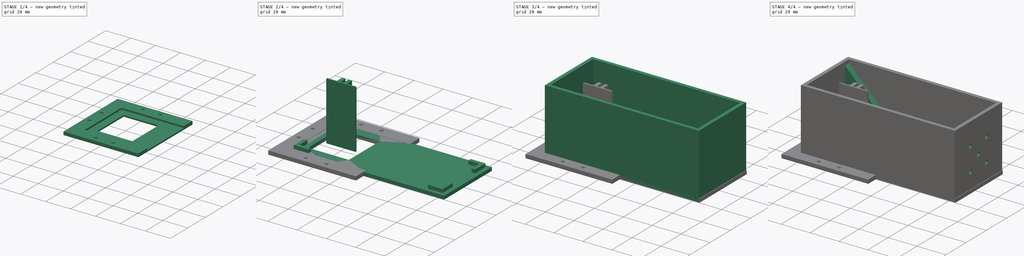
[diagram: build sequence overview — one tinted view per stage of 4, left to right]
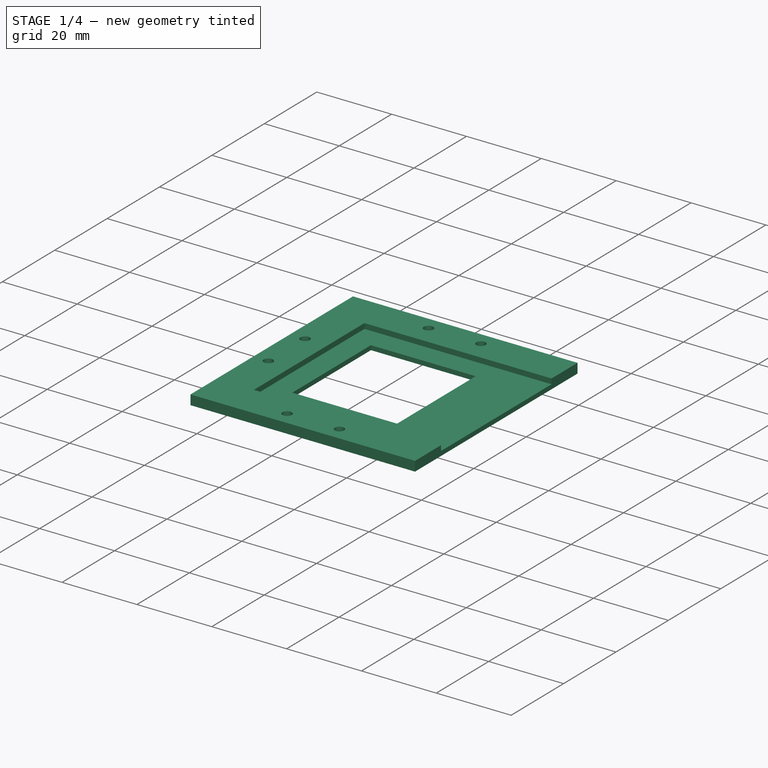
[diagram: stage 1 of 4 — iso view after this stage's code; geometry added in this stage tinted green]
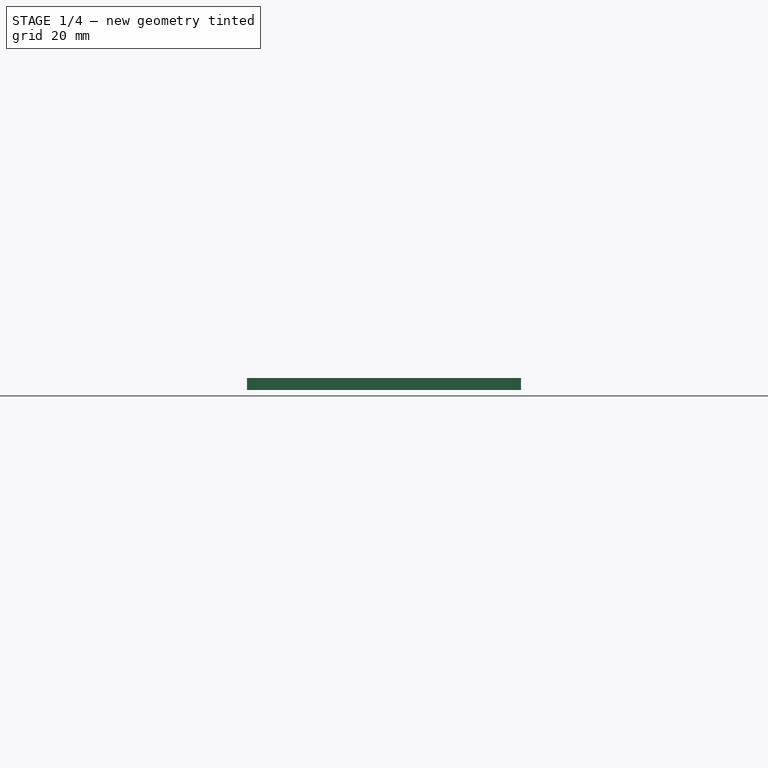
[diagram: stage 1 of 4 — front view after this stage's code; geometry added in this stage tinted green]
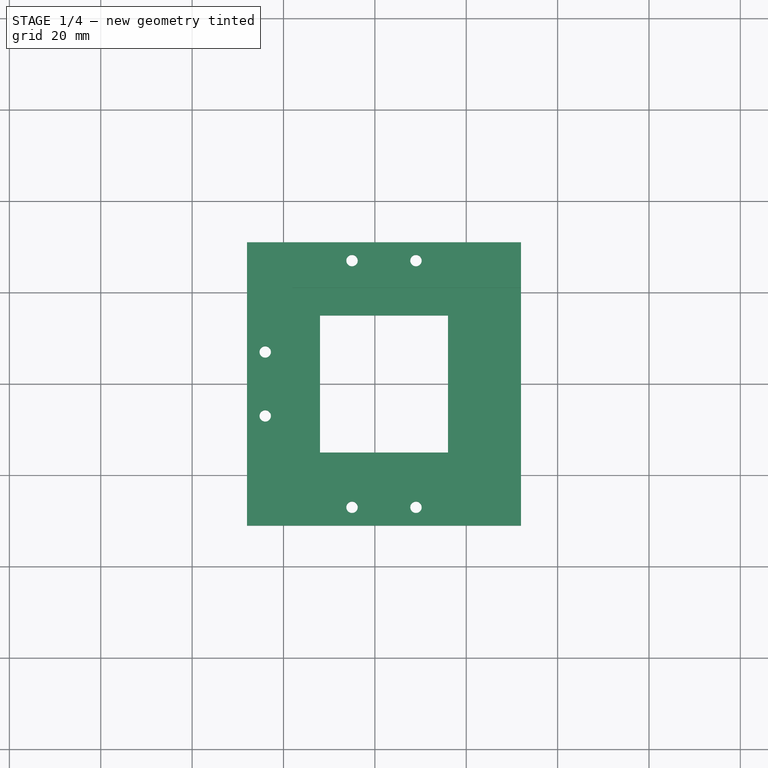
[diagram: stage 1 of 4 — top view after this stage's code; geometry added in this stage tinted green]
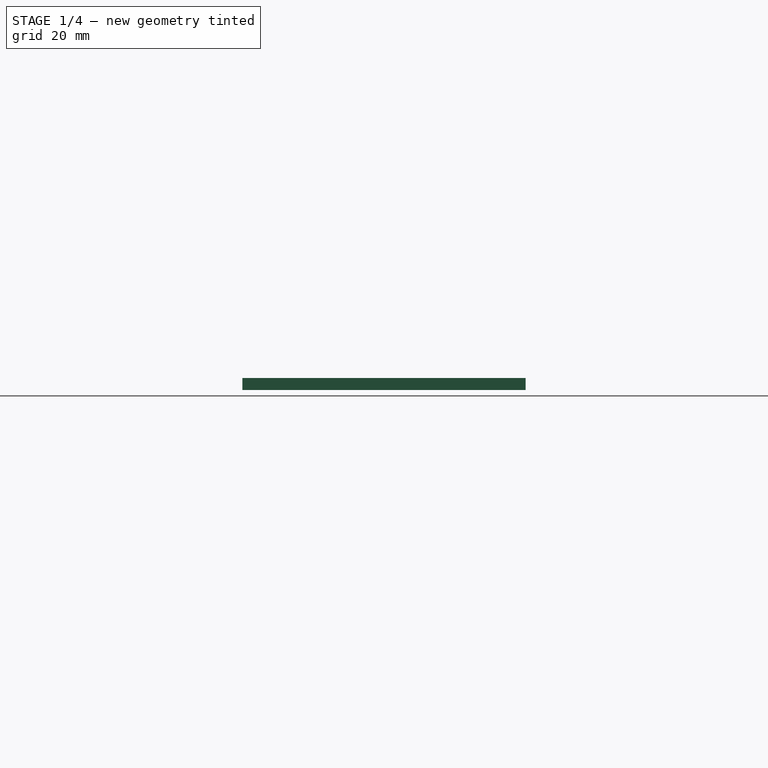
[diagram: stage 1 of 4 — right view after this stage's code; geometry added in this stage tinted green]
FCSTD DOCUMENT  (FreeCAD 1.0R39109 (Git))
Label: slide-scanner
License: All rights reserved
LicenseURL: https://en.wikipedia.org/wiki/All_rights_reserved
objects: Sketcher::SketchObject×10, PartDesign::Pad×8, PartDesign::Body×4, Spreadsheet::Sheet×2, PartDesign::Pocket×2, PartDesign::Mirrored×1
note: 56 computed .brp shape members not serialized (recipe doc carries the construction recipe); baked Part::Feature solids carry a one-line shape summary decoded from their .brp

FEATURE [PartDesign::Body] Body002  label="lid"
  AllowCompound = false
  Group = -> [Sketch005,Sketch006,Pad005,Pad006]
  Origin = -> Origin002
  Tip = -> Pad006
FEATURE [Sketcher::SketchObject] Sketch007  label="main001"
  ArcFitTolerance = 1e-06
  AttachmentSupport = -> [XY_Plane003]
  FullyConstrained = true
  MakeInternals = false
  MapMode = 5
  sketch-geometry (20):
    g0: LineSegment StartX=-12 StartY=15 StartZ=0 EndX=-12 EndY=-15 EndZ=0
    g1: LineSegment StartX=-12 StartY=-15 StartZ=0 EndX=16 EndY=-15 EndZ=0
    g2: LineSegment StartX=16 StartY=-15 StartZ=0 EndX=16 EndY=15 EndZ=0
    g3: LineSegment StartX=16 StartY=15 StartZ=0 EndX=-12 EndY=15 EndZ=0
    g4: Circle CenterX=-5 CenterY=27 CenterZ=0 NormalX=0 NormalY=0 NormalZ=1 AngleXU=0 Radius=1.25
    g5: Circle CenterX=9 CenterY=27 CenterZ=0 NormalX=0 NormalY=0 NormalZ=1 AngleXU=0 Radius=1.25
    g6: Circle CenterX=-5 CenterY=-27 CenterZ=0 NormalX=0 NormalY=0 NormalZ=1 AngleXU=0 Radius=1.25
    g7: Circle CenterX=9 CenterY=-27 CenterZ=0 NormalX=0 NormalY=0 NormalZ=1 AngleXU=0 Radius=1.25
    g8: GeomPoint [constr] X=2 Y=15 Z=0
    g9: GeomPoint [constr] X=2 Y=-15 Z=0
    g10: GeomPoint [constr] X=9 Y=-15 Z=0
    g11: GeomPoint [constr] X=-5 Y=-15 Z=0
    g12: GeomPoint [constr] X=-5 Y=15 Z=0
    g13: GeomPoint [constr] X=9 Y=15 Z=0
    g14: Circle CenterX=-24 CenterY=7 CenterZ=0 NormalX=0 NormalY=0 NormalZ=1 AngleXU=0 Radius=1.25
    g15: Circle CenterX=-24 CenterY=-7 CenterZ=0 NormalX=0 NormalY=0 NormalZ=1 AngleXU=0 Radius=1.25
    g16: LineSegment StartX=-28 StartY=31 StartZ=0 EndX=32 EndY=31 EndZ=0
    g17: LineSegment StartX=32 StartY=-31 StartZ=0 EndX=-28 EndY=-31 EndZ=0
    g18: LineSegment StartX=-28 StartY=31 StartZ=0 EndX=-28 EndY=-31 EndZ=0
    g19: LineSegment StartX=32 StartY=31 StartZ=0 EndX=32 EndY=-31 EndZ=0
  constraints (46):
    c: Coincident(g0,g1)
    c: Coincident(g1,g2)
    c: Coincident(g2,g3)
    c: Coincident(g3,g0)
    c: Vertical(g2)
    c: Horizontal(g1)
    c: Horizontal(g3)
    c: DistanceX(g3,g3) = 28
    c: DistanceY(g2,g2) = 30
    c: DistanceX(g0,g-1) = 12
    c: Equal(g7,g6)
    c: Equal(g6,g4)
    c: Equal(g4,g5)
    c: Diameter(g4) = 2.5
    c: Symmetric(g0,g2,g8)
    c: Symmetric(g1,g0,g9)
    c: Symmetric(g8,g2,g13)
    c: Symmetric(g0,g8,g12)
    c: Symmetric(g0,g9,g11)
    c: Symmetric(g1,g9,g10)
    c: Vertical(g4,g12)
    c: Vertical(g5,g13)
    c: Vertical(g7,g10)
    c: Vertical(g6,g11)
    c: DistanceY(g6,g11) = 12
    c: DistanceY(g7,g10) = 12
    c: DistanceY(g12,g4) = 12
    c: DistanceY(g13,g5) = 12
    c: Equal(g14,g4)
    c: Equal(g15,g4)
    c: Horizontal(g16)
    c: Horizontal(g17)
    c: Coincident(g18,g16)
    c: Coincident(g18,g17)
    c: DistanceY(g17,g6) = 4
    c: DistanceY(g4,g16) = 4
    c: DistanceX(g16,g14) = 4
    c: DistanceX(g15,g0) = 12
    c: Symmetric(g15,g14,g-1)
    c: Vertical(g18)
    c: Symmetric(g0,g0,g-1)
    c: DistanceY(g15,g14) = 14
    c: Coincident(g19,g16)
    c: Coincident(g19,g17)
    c: Vertical(g19)
    c: DistanceX(g1,g17) = 16
FEATURE [PartDesign::Pad] Pad007
  Direction = (0,0,1)
  Length = 1.2
  Length2 = 10
  Profile = -> Sketch007
  ReferenceAxis = -> Sketch007 [N_Axis]
  Refine = true
  Suppressed = false
  Type = 0
FEATURE [Spreadsheet::Sheet] Spreadsheet001
  cells = A1='slide w; B1(slide_w)=101; A2='slide h; B2(slide_h)=41; A3='wall w; B3(wall_w)=2.4; A4='tolerance; B4(tol)=0.4
FEATURE [Sketcher::SketchObject] Sketch008
  ArcFitTolerance = 1e-06
  AttachmentSupport = -> [XY_Plane003]
  ExternalGeometry = -> [Pad007]
  FullyConstrained = true
  MakeInternals = false
  MapMode = 5
  sketch-geometry (8):
    g0: LineSegment StartX=-28 StartY=31 StartZ=0 EndX=-28 EndY=-31 EndZ=0
    g1: LineSegment StartX=-28 StartY=-31 StartZ=0 EndX=32 EndY=-31 EndZ=0
    g2: LineSegment StartX=32 StartY=31 StartZ=0 EndX=-28 EndY=31 EndZ=0
    g3: LineSegment StartX=-18 StartY=21.1 StartZ=0 EndX=-18 EndY=-21.1 EndZ=0
    g4: LineSegment StartX=-18 StartY=-21.1 StartZ=0 EndX=32 EndY=-21.1 EndZ=0
    g5: LineSegment StartX=32 StartY=21.1 StartZ=0 EndX=-18 EndY=21.1 EndZ=0
    g6: LineSegment StartX=32 StartY=21.1 StartZ=0 EndX=32 EndY=31 EndZ=0
    g7: LineSegment StartX=32 StartY=-21.1 StartZ=0 EndX=32 EndY=-31 EndZ=0
  constraints (21):
    c: Coincident(g0,g1)
    c: Coincident(g2,g0)
    c: Vertical(g0)
    c: Horizontal(g1)
    c: Horizontal(g2)
    c: Coincident(g0,g-4)
    c: Coincident(g1,g-5)
    c: Coincident(g3,g4)
    c: Coincident(g5,g3)
    c: Horizontal(g4)
    c: Horizontal(g5)
    c: DistanceY(g3,g3) = 42.2
    c: Symmetric(g3,g3,g-1)
    c: DistanceX(g0,g3) = 10
    c: Vertical(g5,g2)
    c: Coincident(g6,g5)
    c: Coincident(g6,g2)
    c: Coincident(g7,g4)
    c: Coincident(g7,g1)
    c: Vertical(g7)
    c: Vertical(g5,g4)
FEATURE [PartDesign::Pad] Pad008
  BaseFeature = -> Pad007
  Direction = (0,0,1)
  Length = 2.6
  Length2 = 10
  Profile = -> Sketch008
  ReferenceAxis = -> Sketch008 [N_Axis]
  Refine = true
  Suppressed = false
  Type = 0
FEATURE [Sketcher::SketchObject] Sketch009  label="main002"
  ArcFitTolerance = 1e-06
  AttachmentSupport = -> [XY_Plane003]
  FullyConstrained = false
  MakeInternals = false
  MapMode = 5
  sketch-geometry (6):
    g0: Circle CenterX=-5 CenterY=27 CenterZ=0 NormalX=0 NormalY=0 NormalZ=1 AngleXU=0 Radius=1.25
    g1: Circle CenterX=9 CenterY=27 CenterZ=0 NormalX=0 NormalY=0 NormalZ=1 AngleXU=0 Radius=1.25
    g2: Circle CenterX=-5 CenterY=-27 CenterZ=0 NormalX=0 NormalY=0 NormalZ=1 AngleXU=0 Radius=1.25
    g3: Circle CenterX=9 CenterY=-27 CenterZ=0 NormalX=0 NormalY=0 NormalZ=1 AngleXU=0 Radius=1.25
    g4: Circle CenterX=-24 CenterY=7 CenterZ=0 NormalX=0 NormalY=0 NormalZ=1 AngleXU=0 Radius=1.25
    g5: Circle CenterX=-24 CenterY=-7 CenterZ=0 NormalX=0 NormalY=0 NormalZ=1 AngleXU=0 Radius=1.25
  constraints (8):
    c: Equal(g3,g2)
    c: Equal(g2,g0)
    c: Equal(g0,g1)
    c: Diameter(g0) = 2.5
    c: Equal(g4,g0)
    c: Equal(g5,g0)
    c: Symmetric(g5,g4,g-1)
    c: DistanceY(g5,g4) = 14
FEATURE [PartDesign::Pocket] Pocket001
  BaseFeature = -> Pad008
  Direction = (0,0,-1)
  Length = 5
  Length2 = 5
  Midplane = true
  Profile = -> Sketch009
  ReferenceAxis = -> Sketch009 [N_Axis]
  Refine = true
  Suppressed = false
  Type = 1
FEATURE [PartDesign::Body] Body003  label="lid-top"
  AllowCompound = false
  Group = -> [Sketch007,Pad007,Sketch008,Pad008,Sketch009,Pocket001]
  Origin = -> Origin003
  Tip = -> Pocket001
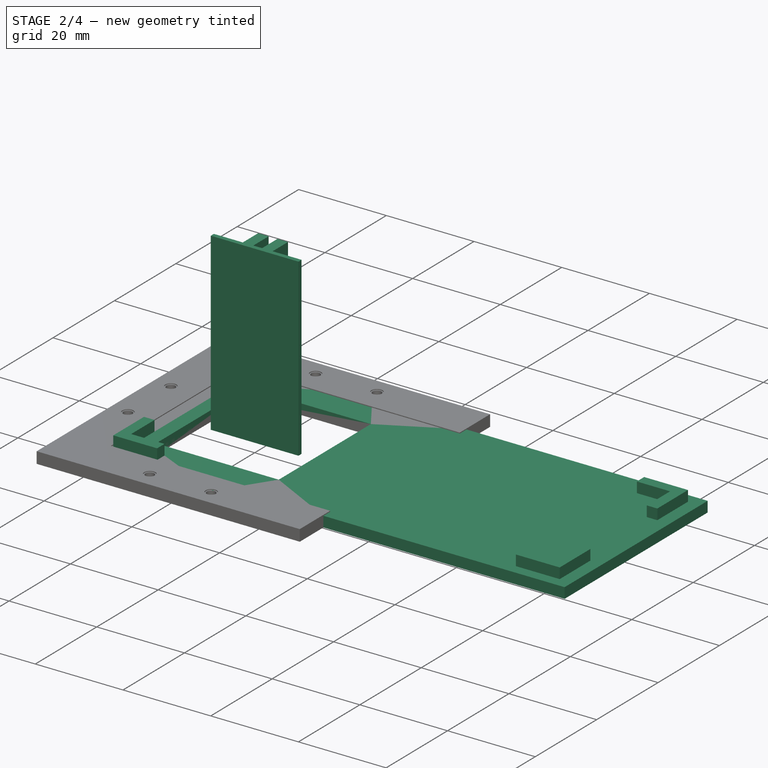
[diagram: stage 2 of 4 — iso view after this stage's code; geometry added in this stage tinted green]
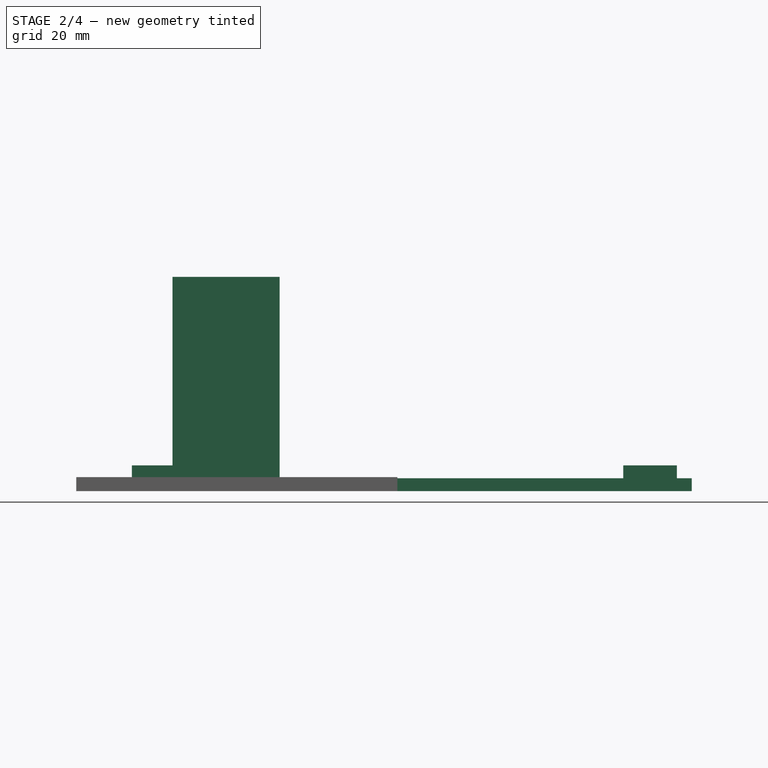
[diagram: stage 2 of 4 — front view after this stage's code; geometry added in this stage tinted green]
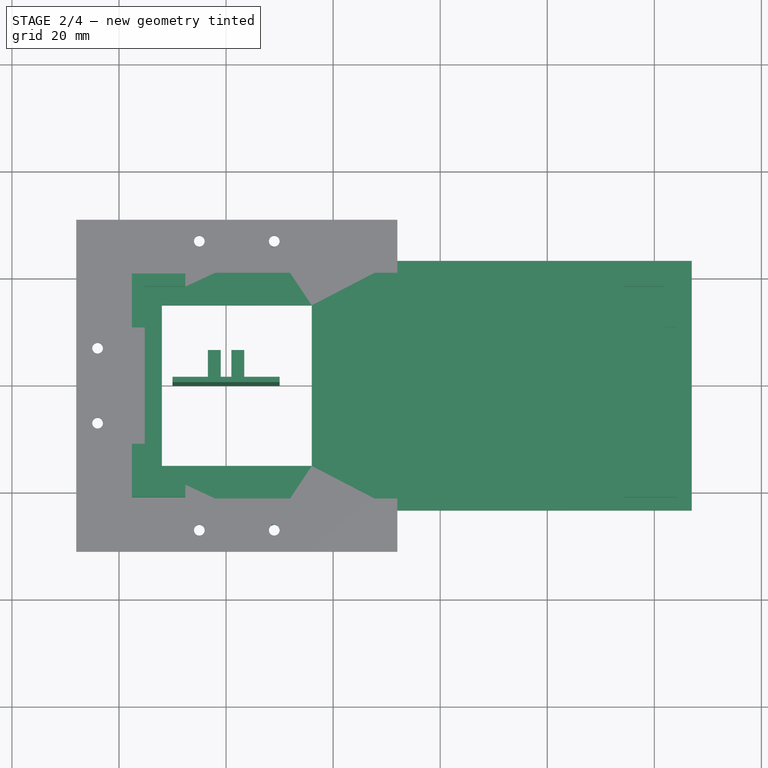
[diagram: stage 2 of 4 — top view after this stage's code; geometry added in this stage tinted green]
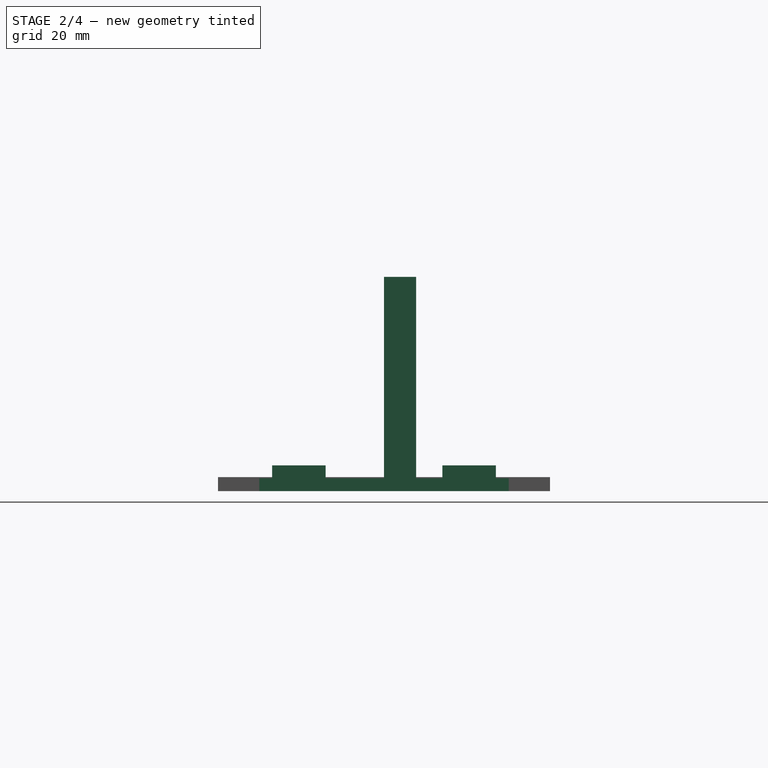
[diagram: stage 2 of 4 — right view after this stage's code; geometry added in this stage tinted green]
FEATURE [PartDesign::Body] Body  label="box"
  AllowCompound = false
  Group = -> [Sketch,Pad,Sketch001,Pad001,Sketch002,Pad002,Mirrored,Sketch003,Pocket]
  Origin = -> Origin
  Tip = -> Pocket
FEATURE [Sketcher::SketchObject] Sketch004
  ArcFitTolerance = 1e-06
  AttachmentSupport = -> [XY_Plane001]
  FullyConstrained = true
  MakeInternals = false
  MapMode = 5
  sketch-geometry (12):
    g0: LineSegment StartX=-10 StartY=0 StartZ=0 EndX=10 EndY=0 EndZ=0
    g1: LineSegment StartX=10 StartY=0 StartZ=0 EndX=10 EndY=1 EndZ=0
    g2: LineSegment StartX=10 StartY=1 StartZ=0 EndX=3.4 EndY=1 EndZ=0
    g3: LineSegment StartX=3.4 StartY=1 StartZ=0 EndX=3.4 EndY=6 EndZ=0
    g4: LineSegment StartX=3.4 StartY=6 StartZ=0 EndX=1 EndY=6 EndZ=0
    g5: LineSegment StartX=1 StartY=6 StartZ=0 EndX=1 EndY=1 EndZ=0
    g6: LineSegment StartX=1 StartY=1 StartZ=0 EndX=-1 EndY=1 EndZ=0
    g7: LineSegment StartX=-1 StartY=1 StartZ=0 EndX=-1 EndY=6 EndZ=0
    g8: LineSegment StartX=-1 StartY=6 StartZ=0 EndX=-3.4 EndY=6 EndZ=0
    g9: LineSegment StartX=-3.4 StartY=6 StartZ=0 EndX=-3.4 EndY=1 EndZ=0
    g10: LineSegment StartX=-3.4 StartY=1 StartZ=0 EndX=-10 EndY=1 EndZ=0
    g11: LineSegment StartX=-10 StartY=1 StartZ=0 EndX=-10 EndY=0 EndZ=0
  constraints (33):
    c: PointOnObject(g0,g-1)
    c: Coincident(g0,g1)
    c: Vertical(g1)
    c: Coincident(g1,g2)
    c: Horizontal(g2)
    c: Coincident(g2,g3)
    c: Vertical(g3)
    c: Coincident(g3,g4)
    c: Coincident(g4,g5)
    c: Vertical(g5)
    c: Coincident(g5,g6)
    c: Coincident(g6,g7)
    c: Vertical(g7)
    c: Coincident(g7,g8)
    c: Coincident(g8,g9)
    c: Vertical(g9)
    c: Coincident(g9,g10)
    c: Horizontal(g10)
    c: Coincident(g10,g11)
    c: Coincident(g11,g0)
    c: Vertical(g11)
    c: Symmetric(g7,g4,g-2)
    c: Horizontal(g6)
    c: Horizontal(g8)
    c: Symmetric(g0,g0,g-1)
    c: DistanceY(g11,g11) = 1
    c: DistanceX(g0,g0) = 20
    c: Horizontal(g6,g9)
    c: Horizontal(g2,g5)
    c: Symmetric(g3,g8,g-2)
    c: DistanceY(g9,g9) = 5
    c: DistanceX(g8,g8) = 2.4
    c: DistanceX(g6,g6) = 2
FEATURE [PartDesign::Pad] Pad003
  Direction = (0,0,1)
  Length = 40
  Length2 = 10
  Profile = -> Sketch004
  ReferenceAxis = -> Sketch004 [N_Axis]
  Refine = true
  Suppressed = false
  Type = 0
FEATURE [PartDesign::Body] Body001  label="paper holder"
  AllowCompound = false
  Group = -> [Sketch004,Pad003]
  Origin = -> Origin001
  Tip = -> Pad003
FEATURE [Sketcher::SketchObject] Sketch005  label="main"
  ArcFitTolerance = 1e-06
  AttachmentSupport = -> [XY_Plane002]
  FullyConstrained = true
  MakeInternals = false
  MapMode = 5
  expr: Constraints[31] = Spreadsheet.slide_h + 2 * (Spreadsheet.wall_w + Spreadsheet.tol)
  sketch-geometry (24):
    g0: LineSegment StartX=87 StartY=-23.3 StartZ=0 EndX=87 EndY=23.3 EndZ=0
    g1: LineSegment StartX=-12 StartY=15 StartZ=0 EndX=-12 EndY=-15 EndZ=0
    g2: LineSegment StartX=-12 StartY=-15 StartZ=0 EndX=16 EndY=-15 EndZ=0
    g3: LineSegment StartX=16 StartY=-15 StartZ=0 EndX=16 EndY=15 EndZ=0
    g4: LineSegment StartX=16 StartY=15 StartZ=0 EndX=-12 EndY=15 EndZ=0
    g5: Circle CenterX=-5 CenterY=27 CenterZ=0 NormalX=0 NormalY=0 NormalZ=1 AngleXU=0 Radius=1
    g6: Circle CenterX=9 CenterY=27 CenterZ=0 NormalX=0 NormalY=0 NormalZ=1 AngleXU=0 Radius=1
    g7: Circle CenterX=-5 CenterY=-27 CenterZ=0 NormalX=0 NormalY=0 NormalZ=1 AngleXU=0 Radius=1
    g8: Circle CenterX=9 CenterY=-27 CenterZ=0 NormalX=0 NormalY=0 NormalZ=1 AngleXU=0 Radius=1
    g9: GeomPoint [constr] X=2 Y=15 Z=0
    g10: GeomPoint [constr] X=2 Y=-15 Z=0
    g11: GeomPoint [constr] X=9 Y=-15 Z=0
    g12: GeomPoint [constr] X=-5 Y=-15 Z=0
    g13: GeomPoint [constr] X=-5 Y=15 Z=0
    g14: GeomPoint [constr] X=9 Y=15 Z=0
    g15: Circle CenterX=-24 CenterY=7 CenterZ=0 NormalX=0 NormalY=0 NormalZ=1 AngleXU=0 Radius=1
    g16: Circle CenterX=-24 CenterY=-7 CenterZ=0 NormalX=0 NormalY=0 NormalZ=1 AngleXU=0 Radius=1
    g17: LineSegment StartX=-28 StartY=31 StartZ=0 EndX=32 EndY=31 EndZ=0
    g18: LineSegment StartX=32 StartY=31 StartZ=0 EndX=32 EndY=23.3 EndZ=0
    g19: LineSegment StartX=32 StartY=23.3 StartZ=0 EndX=87 EndY=23.3 EndZ=0
    g20: LineSegment StartX=87 StartY=-23.3 StartZ=0 EndX=32 EndY=-23.3 EndZ=0
    g21: LineSegment StartX=32 StartY=-23.3 StartZ=0 EndX=32 EndY=-31 EndZ=0
    g22: LineSegment StartX=32 StartY=-31 StartZ=0 EndX=-28 EndY=-31 EndZ=0
    g23: LineSegment StartX=-28 StartY=31 StartZ=0 EndX=-28 EndY=-31 EndZ=0
  constraints (57):
    c: Vertical(g0)
    c: Coincident(g1,g2)
    c: Coincident(g2,g3)
    c: Coincident(g3,g4)
    c: Coincident(g4,g1)
    c: Vertical(g3)
    c: Horizontal(g2)
    c: Horizontal(g4)
    c: DistanceX(g4,g4) = 28
    c: DistanceY(g3,g3) = 30
    c: DistanceX(g1,g-1) = 12
    c: Equal(g8,g7)
    c: Equal(g7,g5)
    c: Equal(g5,g6)
    c: Diameter(g5) = 2
    c: Symmetric(g1,g3,g9)
    c: Symmetric(g2,g1,g10)
    c: Symmetric(g9,g3,g14)
    c: Symmetric(g1,g9,g13)
    c: Symmetric(g1,g10,g12)
    c: Symmetric(g2,g10,g11)
    c: Vertical(g5,g13)
    c: Vertical(g6,g14)
    c: Vertical(g8,g11)
    c: Vertical(g7,g12)
    c: DistanceY(g7,g12) = 12
    c: DistanceY(g8,g11) = 12
    c: DistanceY(g13,g5) = 12
    c: DistanceY(g14,g6) = 12
    c: Equal(g15,g5)
    c: Equal(g16,g5)
    c: DistanceY(g0,g0) = 46.6
    c: Horizontal(g17)
    c: Coincident(g17,g18)
    c: Coincident(g18,g19)
    c: Coincident(g19,g0)
    c: Horizontal(g19)
    c: Coincident(g0,g20)
    c: Horizontal(g20)
    c: Coincident(g20,g21)
    c: Coincident(g21,g22)
    c: Horizontal(g22)
    c: Coincident(g23,g17)
    c: Coincident(g23,g22)
    c: Vertical(g18)
    c: Vertical(g21)
    c: DistanceX(g2,g20) = 16
    c: Symmetric(g18,g20,g-1)
    c: DistanceX(g3,g0) = 71
    c: DistanceY(g22,g7) = 4
    c: DistanceY(g5,g17) = 4
    c: DistanceX(g17,g15) = 4
    c: DistanceX(g16,g1) = 12
    c: Symmetric(g16,g15,g-1)
    c: Vertical(g23)
    c: Symmetric(g1,g1,g-1)
    c: DistanceY(g16,g15) = 14
FEATURE [Sketcher::SketchObject] Sketch006  label="corners"
  ArcFitTolerance = 1e-06
  AttachmentSupport = -> [XY_Plane002]
  FullyConstrained = true
  MakeInternals = false
  MapMode = 5
  expr: Constraints[36] = Spreadsheet.wall_w
  expr: Constraints[37] = Spreadsheet.wall_w
  expr: Constraints[38] = Spreadsheet.wall_w
  expr: Constraints[39] = Spreadsheet.wall_w
  expr: Constraints[40] = Spreadsheet.wall_w
  expr: Constraints[41] = Spreadsheet.wall_w
  expr: Constraints[42] = Spreadsheet.wall_w
  expr: Constraints[43] = Spreadsheet.wall_w
  expr: Constraints[71] = Spreadsheet.wall_w
  sketch-geometry (24):
    g0: LineSegment StartX=-7.6 StartY=20.9 StartZ=0 EndX=-17.6 EndY=20.9 EndZ=0
    g1: LineSegment StartX=-17.6 StartY=20.9 StartZ=0 EndX=-17.6 EndY=10.9 EndZ=0
    g2: LineSegment StartX=-17.6 StartY=10.9 StartZ=0 EndX=-15.2 EndY=10.9 EndZ=0
    g3: LineSegment StartX=-15.2 StartY=10.9 StartZ=0 EndX=-15.2 EndY=18.5 EndZ=0
    g4: LineSegment StartX=-15.2 StartY=18.5 StartZ=0 EndX=-7.6 EndY=18.5 EndZ=0
    g5: LineSegment StartX=-7.6 StartY=18.5 StartZ=0 EndX=-7.6 EndY=20.9 EndZ=0
    g6: LineSegment StartX=74.2 StartY=20.9 StartZ=0 EndX=84.2 EndY=20.9 EndZ=0
    g7: LineSegment StartX=84.2 StartY=20.9 StartZ=0 EndX=84.2 EndY=10.9 EndZ=0
    g8: LineSegment StartX=84.2 StartY=10.9 StartZ=0 EndX=81.8 EndY=10.9 EndZ=0
    g9: LineSegment StartX=81.8 StartY=10.9 StartZ=0 EndX=81.8 EndY=18.5 EndZ=0
    g10: LineSegment StartX=81.8 StartY=18.5 StartZ=0 EndX=74.2 EndY=18.5 EndZ=0
    g11: LineSegment StartX=74.2 StartY=18.5 StartZ=0 EndX=74.2 EndY=20.9 EndZ=0
    g12: LineSegment StartX=84.2 StartY=-10.9 StartZ=0 EndX=84.2 EndY=-20.9 EndZ=0
    g13: LineSegment StartX=84.2 StartY=-20.9 StartZ=0 EndX=74.2 EndY=-20.9 EndZ=0
    g14: LineSegment StartX=74.2 StartY=-20.9 StartZ=0 EndX=74.2 EndY=-18.5 EndZ=0
    g15: LineSegment StartX=74.2 StartY=-18.5 StartZ=0 EndX=81.8 EndY=-18.5 EndZ=0
    g16: LineSegment StartX=81.8 StartY=-18.5 StartZ=0 EndX=81.8 EndY=-10.9 EndZ=0
    g17: LineSegment StartX=81.8 StartY=-10.9 StartZ=0 EndX=84.2 EndY=-10.9 EndZ=0
    g18: LineSegment StartX=-17.6 StartY=-10.9 StartZ=0 EndX=-17.6 EndY=-20.9 EndZ=0
    g19: LineSegment StartX=-17.6 StartY=-20.9 StartZ=0 EndX=-7.6 EndY=-20.9 EndZ=0
    g20: LineSegment StartX=-7.6 StartY=-20.9 StartZ=0 EndX=-7.6 EndY=-18.5 EndZ=0
    g21: LineSegment StartX=-7.6 StartY=-18.5 StartZ=0 EndX=-15.2 EndY=-18.5 EndZ=0
    g22: LineSegment StartX=-15.2 StartY=-18.5 StartZ=0 EndX=-15.2 EndY=-10.9 EndZ=0
    g23: LineSegment StartX=-15.2 StartY=-10.9 StartZ=0 EndX=-17.6 EndY=-10.9 EndZ=0
  constraints (72):
    c: Coincident(g0,g1)
    c: Vertical(g1)
    c: Coincident(g1,g2)
    c: Horizontal(g2)
    c: Coincident(g2,g3)
    c: Vertical(g3)
    c: Coincident(g3,g4)
    c: Horizontal(g4)
    c: Coincident(g4,g5)
    c: Coincident(g5,g0)
    c: Horizontal(g6)
    c: Coincident(g6,g7)
    c: Coincident(g7,g8)
    c: Horizontal(g8)
    c: Coincident(g8,g9)
    c: Coincident(g9,g10)
    c: Coincident(g10,g11)
    c: Coincident(g11,g6)
    c: Vertical(g12)
    c: Coincident(g12,g13)
    c: Coincident(g13,g14)
    c: Coincident(g14,g15)
    c: Horizontal(g15)
    c: Coincident(g15,g16)
    c: Vertical(g16)
    c: Coincident(g16,g17)
    c: Coincident(g17,g12)
    c: Horizontal(g17)
    c: Vertical(g18)
    c: Coincident(g18,g19)
    c: Horizontal(g19)
    c: Coincident(g19,g20)
    c: Coincident(g20,g21)
    c: Coincident(g21,g22)
    c: Coincident(g22,g23)
    c: Coincident(g23,g18)
    c: DistanceY(g0,g-4) = 2.4
    c: DistanceX(g-4,g0) = 2.4
    c: DistanceY(g6,g-6) = 2.4
    c: DistanceX(g6,g-6) = 2.4
    c: DistanceY(g-6,g12) = 2.4
    c: DistanceX(g12,g-6) = 2.4
    c: DistanceY(g-5,g18) = 2.4
    c: DistanceX(g-5,g18) = 2.4
    c: Equal(g19,g18)
    c: Equal(g18,g1)
    c: Equal(g1,g0)
    c: Equal(g0,g7)
    c: Equal(g7,g6)
    c: Equal(g6,g12)
    c: Equal(g12,g13)
    c: Equal(g5,g2)
    c: Equal(g2,g23)
    c: Equal(g23,g20)
    c: Equal(g20,g14)
    c: Equal(g14,g17)
    c: Equal(g17,g8)
    c: Equal(g8,g11)
    c: Horizontal(g0)
    c: Vertical(g9)
    c: Horizontal(g10)
    c: Vertical(g11)
    c: Vertical(g7)
    c: Horizontal(g13)
    c: Vertical(g14)
    c: Vertical(g20)
    c: Horizontal(g21)
    c: Vertical(g22)
    c: Horizontal(g23)
    c: Vertical(g5)
    c: DistanceX(g0,g0) = 10
    c: DistanceX(g2,g2) = 2.4
FEATURE [PartDesign::Pad] Pad005
  Direction = (0,0,1)
  Length = 2.4
  Length2 = 10
  Profile = -> Sketch005
  ReferenceAxis = -> Sketch005 [N_Axis]
  Refine = true
  Suppressed = false
  Type = 0
  expr: Length = Spreadsheet.wall_w
FEATURE [PartDesign::Pad] Pad006
  BaseFeature = -> Pad005
  Direction = (0,0,1)
  Length = 4.8
  Length2 = 10
  Profile = -> Sketch006
  ReferenceAxis = -> Sketch006 [N_Axis]
  Refine = true
  Suppressed = false
  Type = 0
  expr: Length = Spreadsheet.wall_w * 2
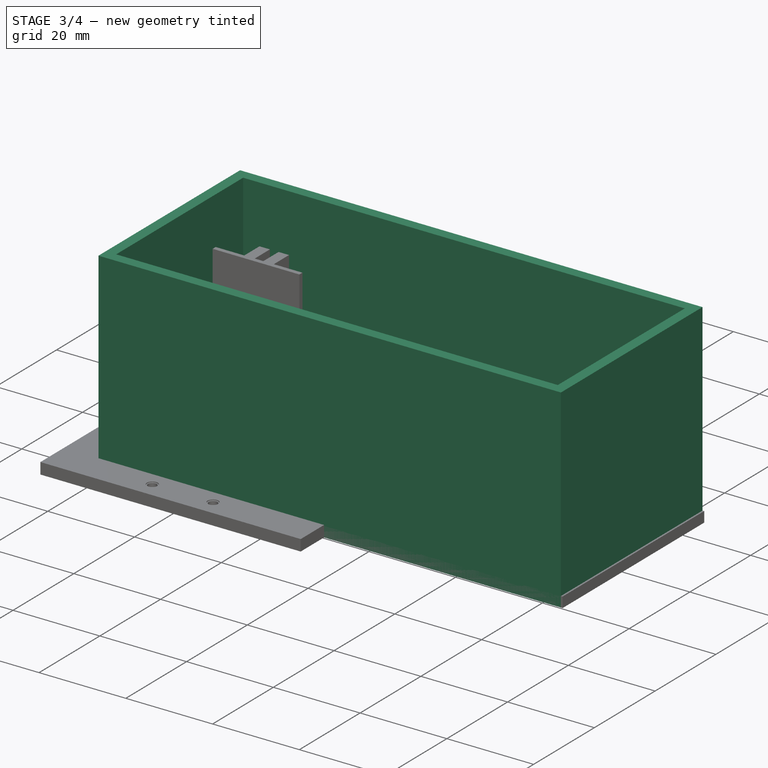
[diagram: stage 3 of 4 — iso view after this stage's code; geometry added in this stage tinted green]
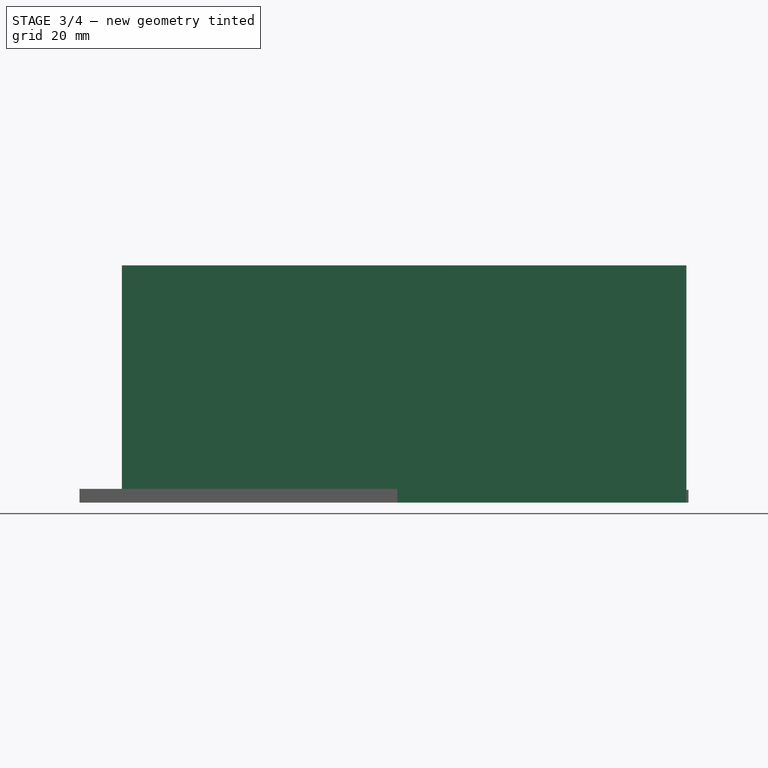
[diagram: stage 3 of 4 — front view after this stage's code; geometry added in this stage tinted green]
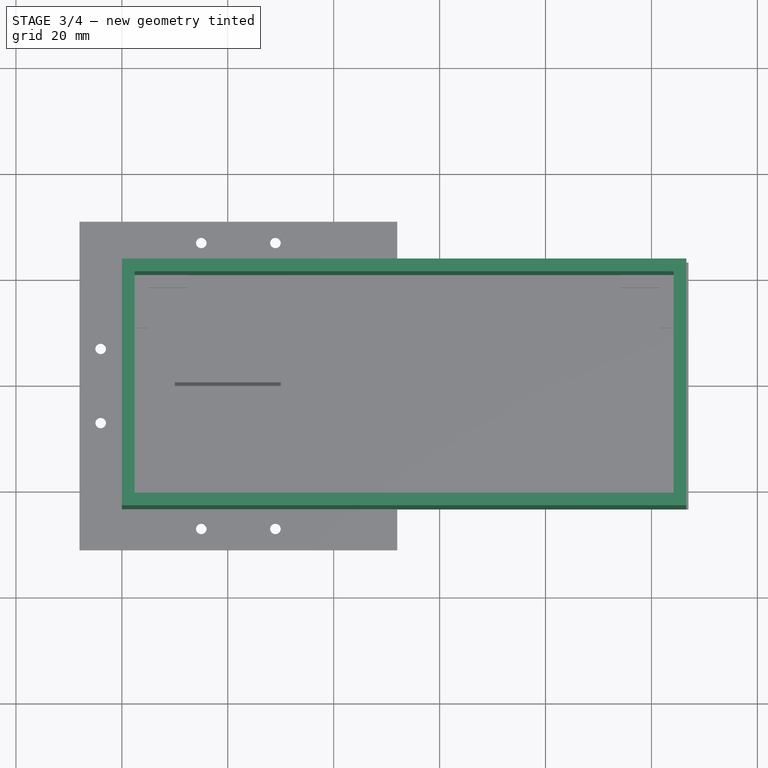
[diagram: stage 3 of 4 — top view after this stage's code; geometry added in this stage tinted green]
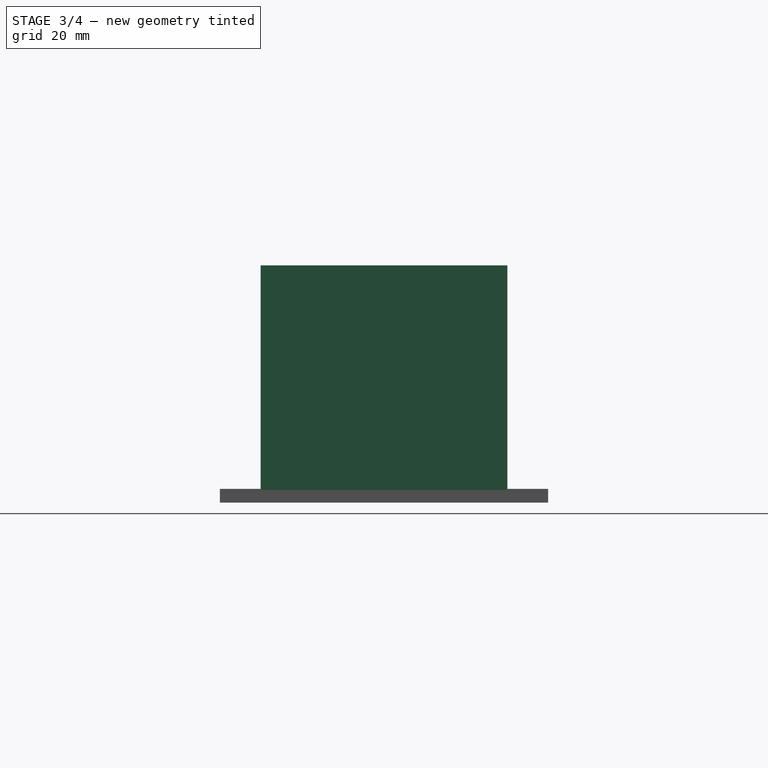
[diagram: stage 3 of 4 — right view after this stage's code; geometry added in this stage tinted green]
FEATURE [Sketcher::SketchObject] Sketch
  ArcFitTolerance = 1e-06
  AttachmentSupport = -> [XY_Plane]
  FullyConstrained = true
  MakeInternals = false
  MapMode = 5
  expr: Constraints[8] = Spreadsheet.slide_h + 2 * (Spreadsheet.wall_w + Spreadsheet.tol)
  expr: Constraints[9] = Spreadsheet.slide_w + 2 * (Spreadsheet.wall_w + Spreadsheet.tol)
  sketch-geometry (6):
    g0: LineSegment StartX=-20 StartY=23.3 StartZ=0 EndX=-20 EndY=-23.3 EndZ=0
    g1: LineSegment StartX=-20 StartY=-23.3 StartZ=0 EndX=86.6 EndY=-23.3 EndZ=0
    g2: LineSegment StartX=86.6 StartY=-23.3 StartZ=0 EndX=86.6 EndY=23.3 EndZ=0
    g3: LineSegment StartX=86.6 StartY=23.3 StartZ=0 EndX=-20 EndY=23.3 EndZ=0
    g4: GeomPoint X=0 Y=23.3 Z=0
    g5: GeomPoint X=0 Y=-23.3 Z=0
  constraints (15):
    c: Coincident(g0,g1)
    c: Coincident(g1,g2)
    c: Coincident(g2,g3)
    c: Coincident(g3,g0)
    c: Vertical(g0)
    c: Vertical(g2)
    c: Horizontal(g1)
    c: Horizontal(g3)
    c: DistanceY(g0,g0) = 46.6
    c: DistanceX(g3,g3) = 106.6
    c: DistanceX(g0,g-1) = 20
    c: PointOnObject(g4,g3)
    c: PointOnObject(g5,g1)
    c: Symmetric(g4,g5,g-1)
    c: PointOnObject(g4,g-2)
FEATURE [Spreadsheet::Sheet] Spreadsheet
  cells = A1='slide w; B1(slide_w)=101; A2='slide h; B2(slide_h)=41; A3='wall w; B3(wall_w)=2.4; A4='tolerance; B4(tol)=0.4
FEATURE [PartDesign::Pad] Pad
  Direction = (0,0,1)
  Length = 2.4
  Length2 = 10
  Profile = -> Sketch
  ReferenceAxis = -> Sketch [N_Axis]
  Refine = true
  Suppressed = false
  Type = 0
FEATURE [Sketcher::SketchObject] Sketch001
  ArcFitTolerance = 1e-06
  AttachmentSupport = -> [XY_Plane]
  ExternalGeometry = -> [Pad]
  FullyConstrained = true
  MakeInternals = false
  MapMode = 5
  expr: Constraints[18] = Spreadsheet.wall_w
  expr: Constraints[19] = Spreadsheet.wall_w
  expr: Constraints[20] = Spreadsheet.wall_w
  expr: Constraints[21] = Spreadsheet.wall_w
  sketch-geometry (8):
    g0: LineSegment StartX=-20 StartY=23.3 StartZ=0 EndX=-20 EndY=-23.3 EndZ=0
    g1: LineSegment StartX=-20 StartY=-23.3 StartZ=0 EndX=86.6 EndY=-23.3 EndZ=0
    g2: LineSegment StartX=86.6 StartY=-23.3 StartZ=0 EndX=86.6 EndY=23.3 EndZ=0
    g3: LineSegment StartX=86.6 StartY=23.3 StartZ=0 EndX=-20 EndY=23.3 EndZ=0
    g4: LineSegment StartX=-17.6 StartY=20.9 StartZ=0 EndX=-17.6 EndY=-20.9 EndZ=0
    g5: LineSegment StartX=-17.6 StartY=-20.9 StartZ=0 EndX=84.2 EndY=-20.9 EndZ=0
    g6: LineSegment StartX=84.2 StartY=-20.9 StartZ=0 EndX=84.2 EndY=20.9 EndZ=0
    g7: LineSegment StartX=84.2 StartY=20.9 StartZ=0 EndX=-17.6 EndY=20.9 EndZ=0
  constraints (22):
    c: Coincident(g0,g1)
    c: Coincident(g1,g2)
    c: Coincident(g2,g3)
    c: Coincident(g3,g0)
    c: Vertical(g0)
    c: Vertical(g2)
    c: Horizontal(g1)
    c: Horizontal(g3)
    c: Coincident(g0,g-4)
    c: Coincident(g1,g-6)
    c: Coincident(g4,g5)
    c: Coincident(g5,g6)
    c: Coincident(g6,g7)
    c: Coincident(g7,g4)
    c: Vertical(g4)
    c: Vertical(g6)
    c: Horizontal(g5)
    c: Horizontal(g7)
    c: DistanceY(g4,g0) = 2.4
    c: DistanceX(g0,g4) = 2.4
    c: DistanceX(g6,g2) = 2.4
    c: DistanceY(g0,g4) = 2.4
FEATURE [PartDesign::Pad] Pad001
  BaseFeature = -> Pad
  Direction = (0,0,1)
  Length = 44.8
  Length2 = 10
  Profile = -> Sketch001
  ReferenceAxis = -> Sketch001 [N_Axis]
  Refine = true
  Suppressed = false
  Type = 0
  expr: Length = 42.4 + Spreadsheet.wall_w
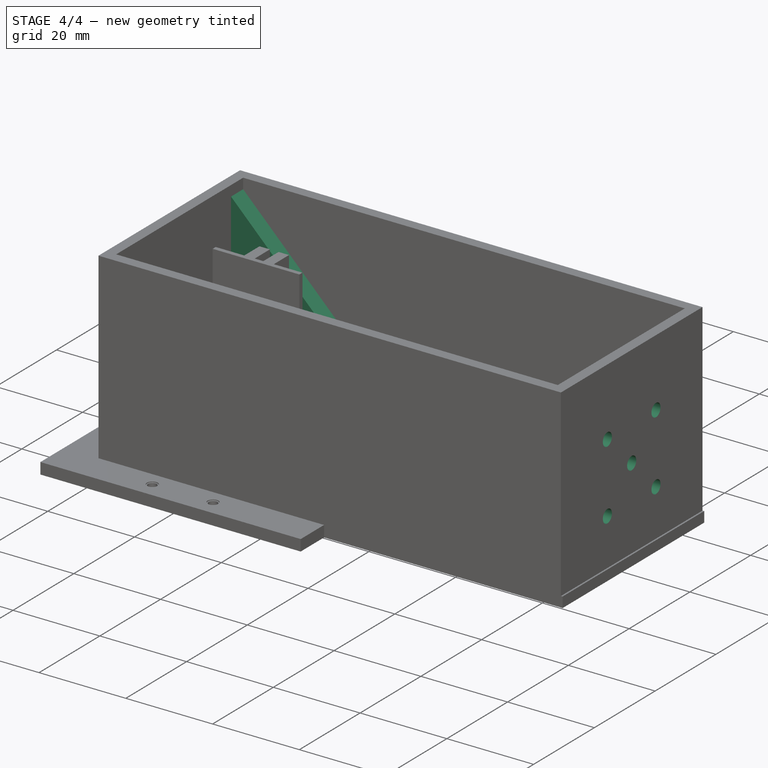
[diagram: stage 4 of 4 — iso view after this stage's code; geometry added in this stage tinted green]
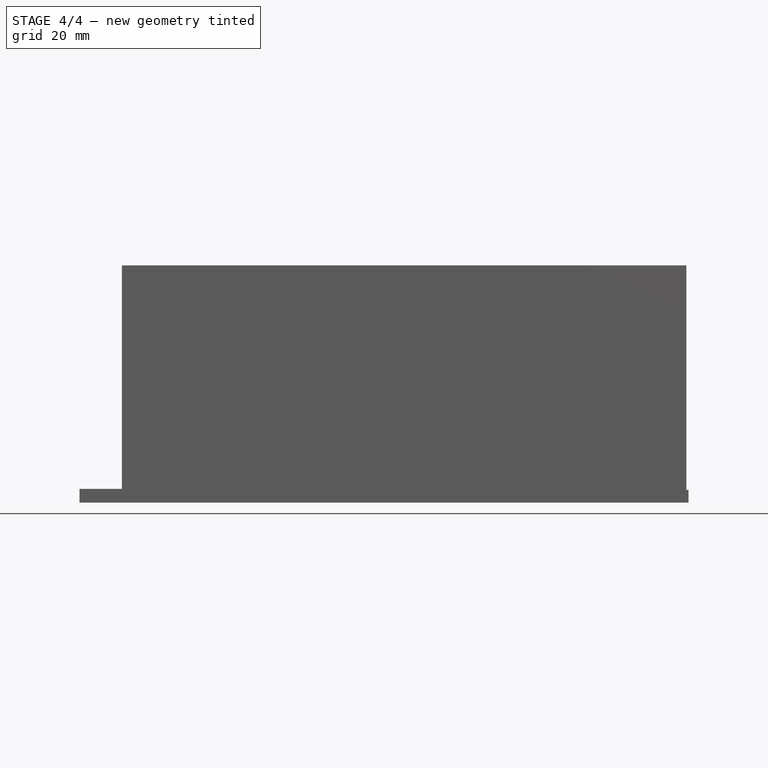
[diagram: stage 4 of 4 — front view after this stage's code; geometry added in this stage tinted green]
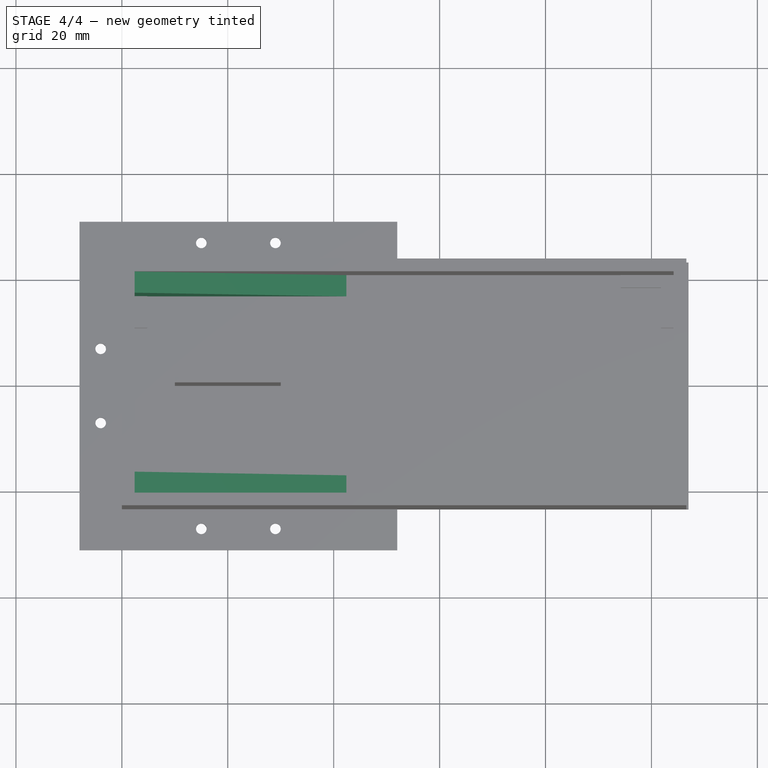
[diagram: stage 4 of 4 — top view after this stage's code; geometry added in this stage tinted green]
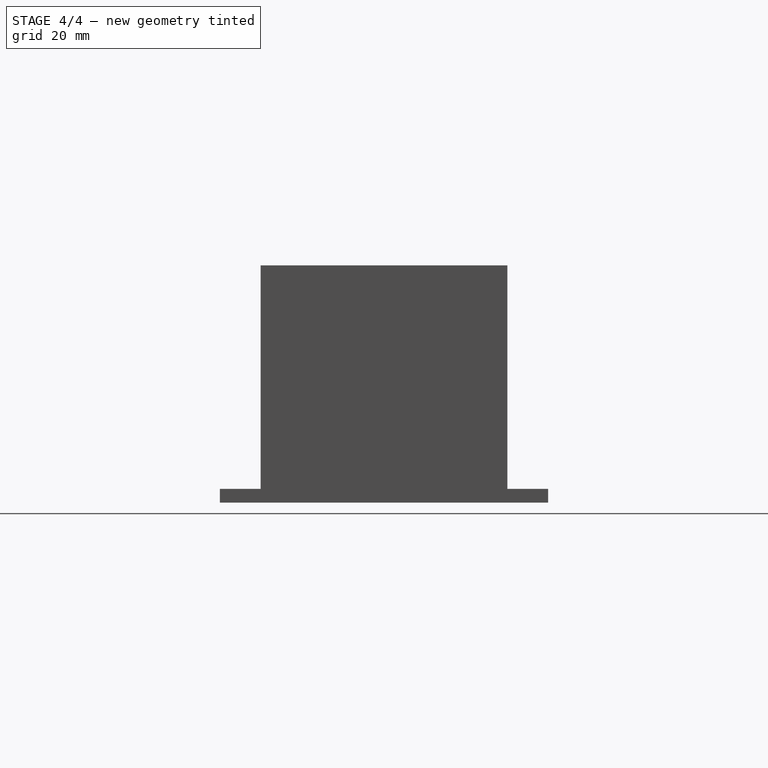
[diagram: stage 4 of 4 — right view after this stage's code; geometry added in this stage tinted green]
FEATURE [Sketcher::SketchObject] Sketch002
  ArcFitTolerance = 1e-06
  AttachmentOffset = pos=(0,0,20.9) rot=(0,0,1;0rad)
  AttachmentSupport = -> [XZ_Plane]
  ExternalGeometry = -> [Pad001]
  FullyConstrained = true
  MakeInternals = false
  MapMode = 5
  Placement = pos=(0,-20.9,4.6e-15) rot=(1,0,0;1.5708rad)
  expr: .AttachmentOffset.Base.z = Spreadsheet.slide_h / 2 + Spreadsheet.tol
  sketch-geometry (3):
    g0: LineSegment StartX=-17.6 StartY=42.4 StartZ=0 EndX=22.4 EndY=2.4 EndZ=0
    g1: LineSegment StartX=22.4 StartY=2.4 StartZ=0 EndX=-17.6 EndY=2.4 EndZ=0
    g2: LineSegment StartX=-17.6 StartY=2.4 StartZ=0 EndX=-17.6 EndY=42.4 EndZ=0
  constraints (8):
    c: Coincident(g0,g1)
    c: Horizontal(g1)
    c: Coincident(g1,g2)
    c: Coincident(g2,g0)
    c: Vertical(g2)
    c: DistanceX(g1,g1) = 40
    c: Angle(g0,g1) = 0.785398
    c: Coincident(g1,g-3)
FEATURE [PartDesign::Pad] Pad002
  BaseFeature = -> Pad001
  Direction = (0,-1,2e-16)
  Length = 4
  Length2 = 10
  Profile = -> Sketch002
  ReferenceAxis = -> Sketch002 [N_Axis]
  Refine = true
  Reversed = true
  Suppressed = false
  Type = 0
FEATURE [PartDesign::Mirrored] Mirrored
  BaseFeature = -> Pad002
  MirrorPlane = -> XZ_Plane
  Originals = -> [Pad002]
  Refine = true
  Suppressed = false
  TransformMode = 0
FEATURE [Sketcher::SketchObject] Sketch003
  ArcFitTolerance = 1e-06
  AttachmentSupport = -> [YZ_Plane]
  FullyConstrained = true
  MakeInternals = false
  MapMode = 5
  Placement = pos=(0,0,0) rot=(0.57735,0.57735,0.57735;2.0944rad)
  expr: Constraints[1] = 42.4 / 2
  sketch-geometry (5):
    g0: Circle CenterX=0 CenterY=21.2 CenterZ=0 NormalX=0 NormalY=0 NormalZ=1 AngleXU=0 Radius=1.5
    g1: Circle CenterX=-8 CenterY=13.2 CenterZ=0 NormalX=0 NormalY=0 NormalZ=1 AngleXU=0 Radius=1.5
    g2: Circle CenterX=8 CenterY=29.2 CenterZ=0 NormalX=0 NormalY=0 NormalZ=1 AngleXU=0 Radius=1.5
    g3: Circle CenterX=-8 CenterY=29.2 CenterZ=0 NormalX=0 NormalY=0 NormalZ=1 AngleXU=0 Radius=1.5
    g4: Circle CenterX=8 CenterY=13.2 CenterZ=0 NormalX=0 NormalY=0 NormalZ=1 AngleXU=0 Radius=1.5
  constraints (12):
    c: PointOnObject(g0,g-2)
    c: DistanceY(g-1,g0) = 21.2
    c: Diameter(g0) = 3
    c: Diameter(g1) = 3
    c: Diameter(g2) = 3
    c: Symmetric(g1,g2,g0)
    c: Equal(g3,g2)
    c: Equal(g4,g3)
    c: Symmetric(g2,g3,g-2)
    c: Symmetric(g1,g4,g-2)
    c: DistanceY(g0,g3) = 8
    c: DistanceX(g3,g0) = 8
FEATURE [PartDesign::Pocket] Pocket
  BaseFeature = -> Mirrored
  Direction = (-1,0,0)
  Length = 5
  Length2 = 5
  Profile = -> Sketch003
  ReferenceAxis = -> Sketch003 [N_Axis]
  Refine = true
  Reversed = true
  Suppressed = false
  Type = 1
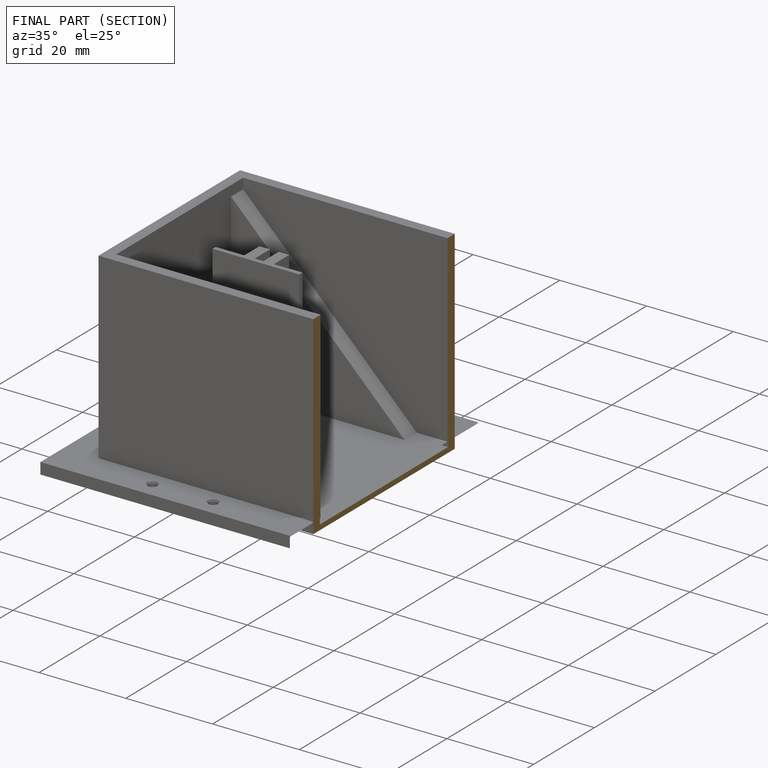
[diagram: finished part — half-section view (interior)]
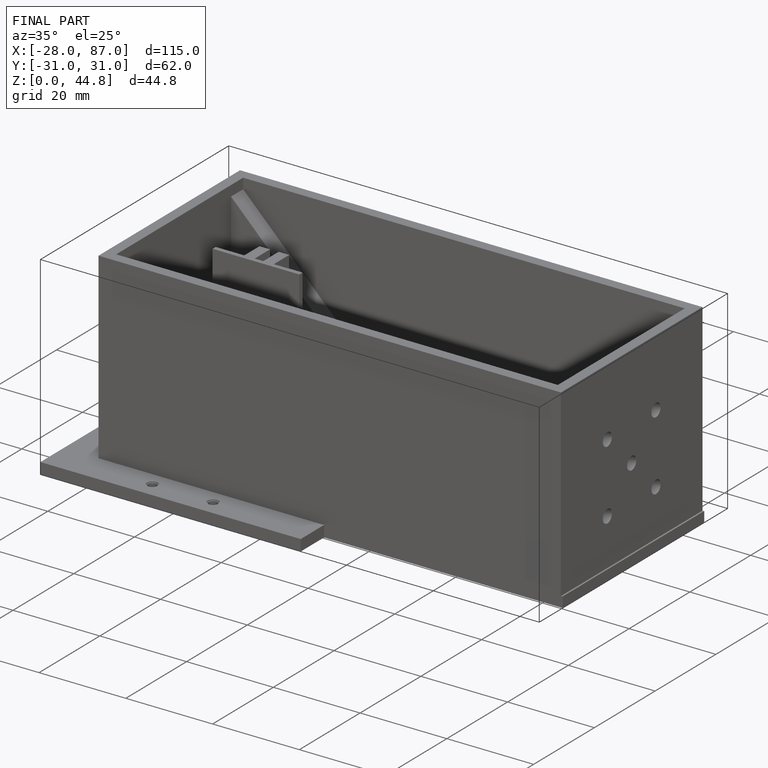
[diagram: finished part — iso view with bounding-box wireframe]
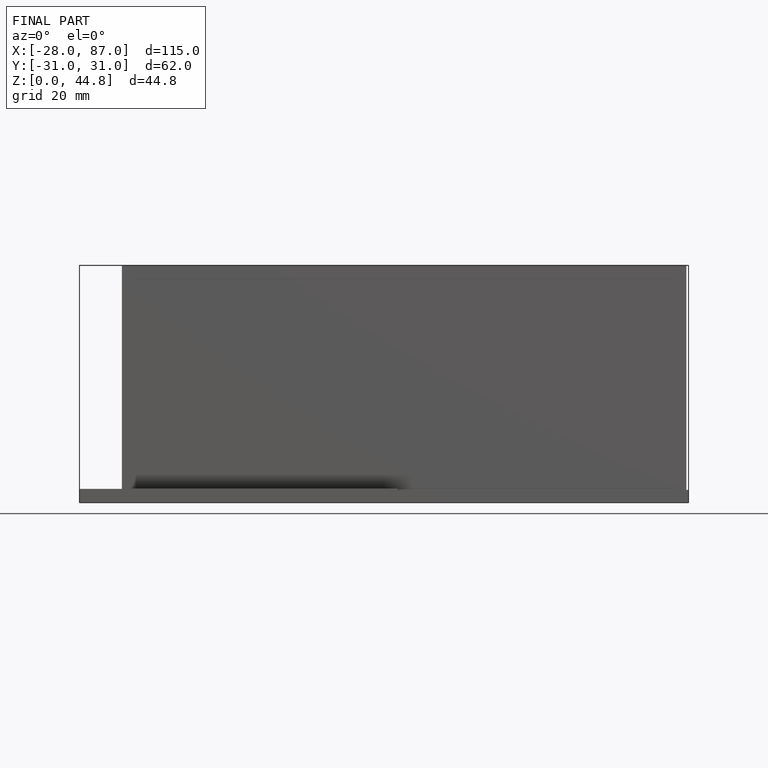
[diagram: finished part — front view with bounding-box wireframe]
